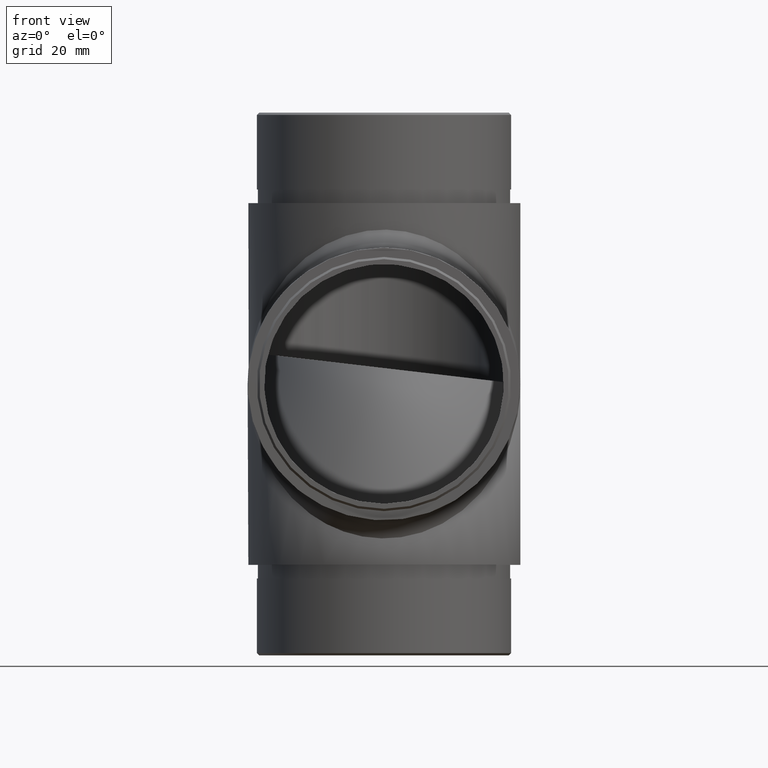
[diagram: clean part render]
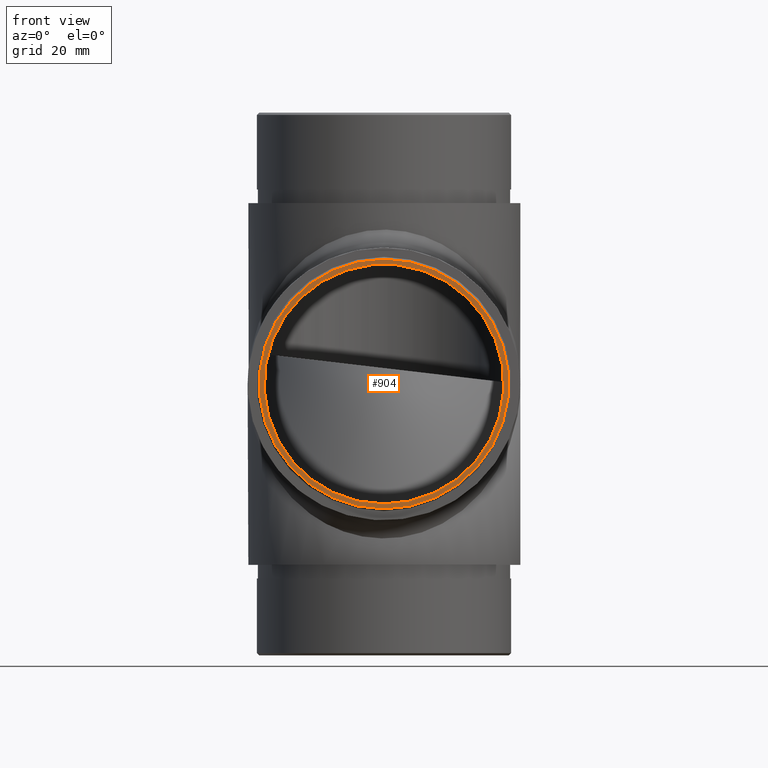
[diagram: same view with one face highlighted and labeled with its STEP entity id]
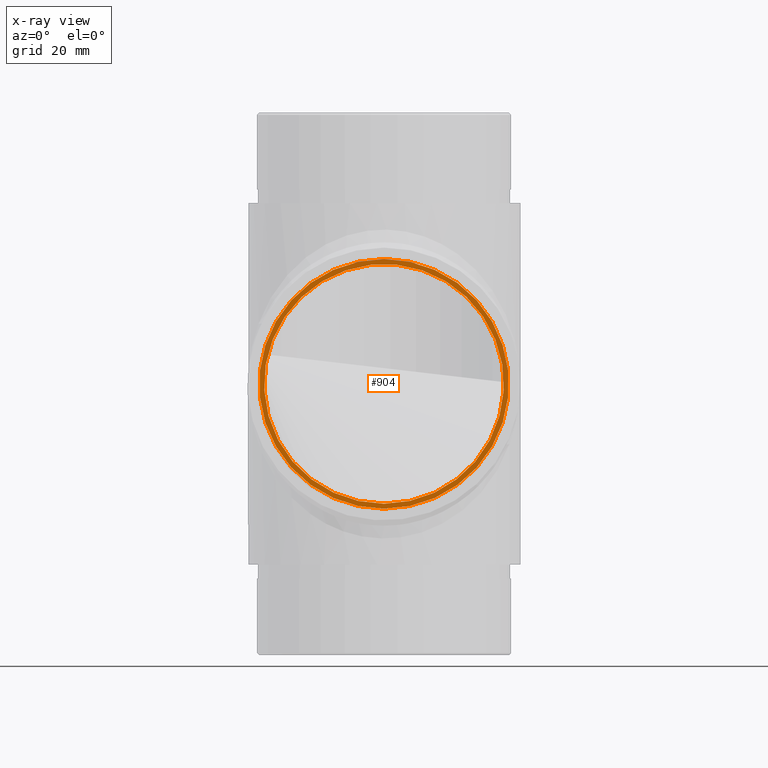
[diagram: x-ray of the same camera — body ghosted, the highlighted face saturated]
A machine part, front view. The second image highlights one B-rep face of the part: STEP entity #904.
The next image is the same camera in x-ray: the body ghosted, the highlighted face saturated — about 0% of this face is hidden behind the body in this view.
In plain terms, the highlighted planar face has unit normal (0, -1, 0).
Its self-contained STEP definition (entity closure, byte-faithful):
#290 = CARTESIAN_POINT ( 'NONE',  ( 0.0000000000000000000, 0.0000000000000000000, -27.60000000000001200 ) ) ;
#331 = CIRCLE ( 'NONE', #1211, 27.60000000000001200 ) ;
#333 = CARTESIAN_POINT ( 'NONE',  ( 0.0000000000000000000, 0.0000000000000000000, -26.50000000000000400 ) ) ;
#761 = VERTEX_POINT ( 'NONE', #290 ) ;
#904 = ADVANCED_FACE ( 'NONE', ( #1659, #11961 ), #7359, .T. ) ;
#1134 = DIRECTION ( 'NONE',  ( 0.0000000000000000000, -1.000000000000000000, 0.0000000000000000000 ) ) ;
#1211 = AXIS2_PLACEMENT_3D ( 'NONE', #9970, #1134, #7909 ) ;
#1513 = CARTESIAN_POINT ( 'NONE',  ( 0.0000000000000000000, 0.0000000000000000000, 0.0000000000000000000 ) ) ;
#1659 = FACE_OUTER_BOUND ( 'NONE', #7449, .T. ) ;
#2348 = CIRCLE ( 'NONE', #4533, 26.50000000000000400 ) ;
#3181 = VERTEX_POINT ( 'NONE', #333 ) ;
#4533 = AXIS2_PLACEMENT_3D ( 'NONE', #10654, #8685, #8601 ) ;
#7359 = PLANE ( 'NONE',  #12131 ) ;
#7449 = EDGE_LOOP ( 'NONE', ( #9048 ) ) ;
#7501 = EDGE_CURVE ( 'NONE', #3181, #3181, #2348, .T. ) ;
#7909 = DIRECTION ( 'NONE',  ( 0.0000000000000000000, 0.0000000000000000000, -1.000000000000000000 ) ) ;
#8315 = ORIENTED_EDGE ( 'NONE', *, *, #7501, .F. ) ;
#8329 = DIRECTION ( 'NONE',  ( 0.0000000000000000000, -0.0000000000000000000, -1.000000000000000000 ) ) ;
#8601 = DIRECTION ( 'NONE',  ( 0.0000000000000000000, 0.0000000000000000000, -1.000000000000000000 ) ) ;
#8685 = DIRECTION ( 'NONE',  ( 0.0000000000000000000, -1.000000000000000000, 0.0000000000000000000 ) ) ;
#9048 = ORIENTED_EDGE ( 'NONE', *, *, #10341, .T. ) ;
#9281 = DIRECTION ( 'NONE',  ( 0.0000000000000000000, -1.000000000000000000, 0.0000000000000000000 ) ) ;
#9453 = EDGE_LOOP ( 'NONE', ( #8315 ) ) ;
#9970 = CARTESIAN_POINT ( 'NONE',  ( 0.0000000000000000000, 0.0000000000000000000, 0.0000000000000000000 ) ) ;
#10341 = EDGE_CURVE ( 'NONE', #761, #761, #331, .T. ) ;
#10654 = CARTESIAN_POINT ( 'NONE',  ( 0.0000000000000000000, 0.0000000000000000000, 0.0000000000000000000 ) ) ;
#11961 = FACE_BOUND ( 'NONE', #9453, .T. ) ;
#12131 = AXIS2_PLACEMENT_3D ( 'NONE', #1513, #9281, #8329 ) ;